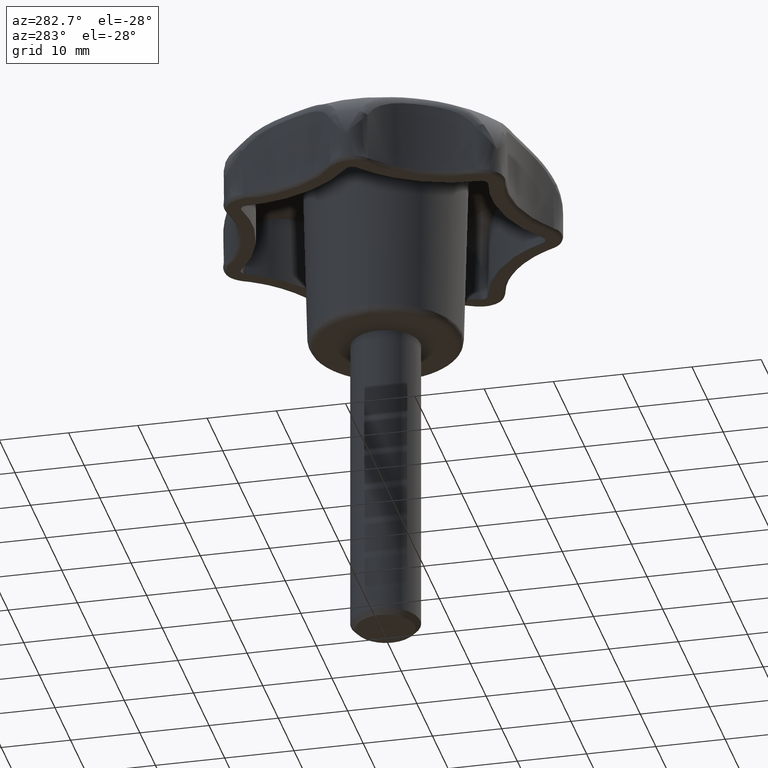
[diagram: clean part render]
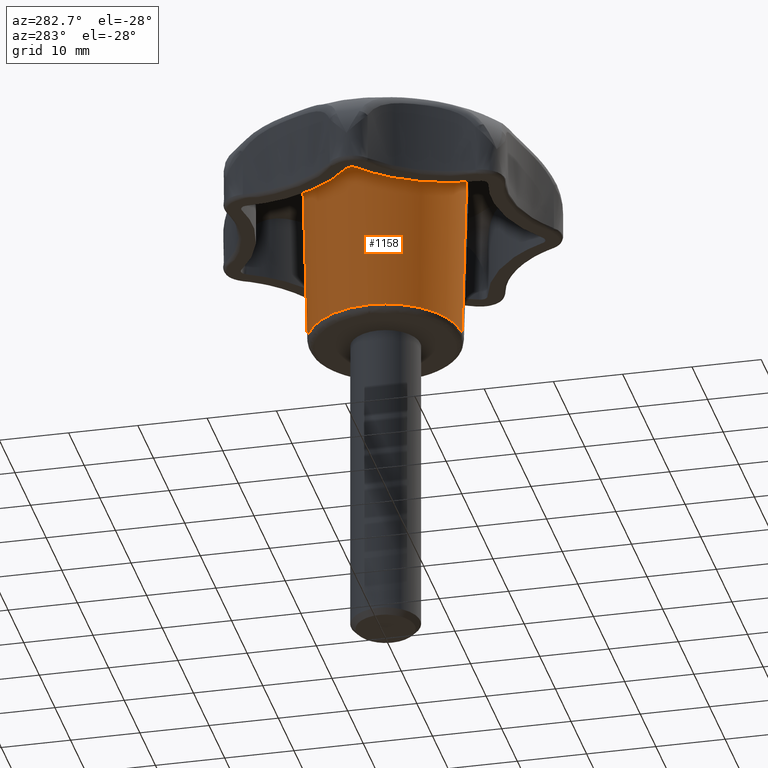
[diagram: same view with one face highlighted and labeled with its STEP entity id]
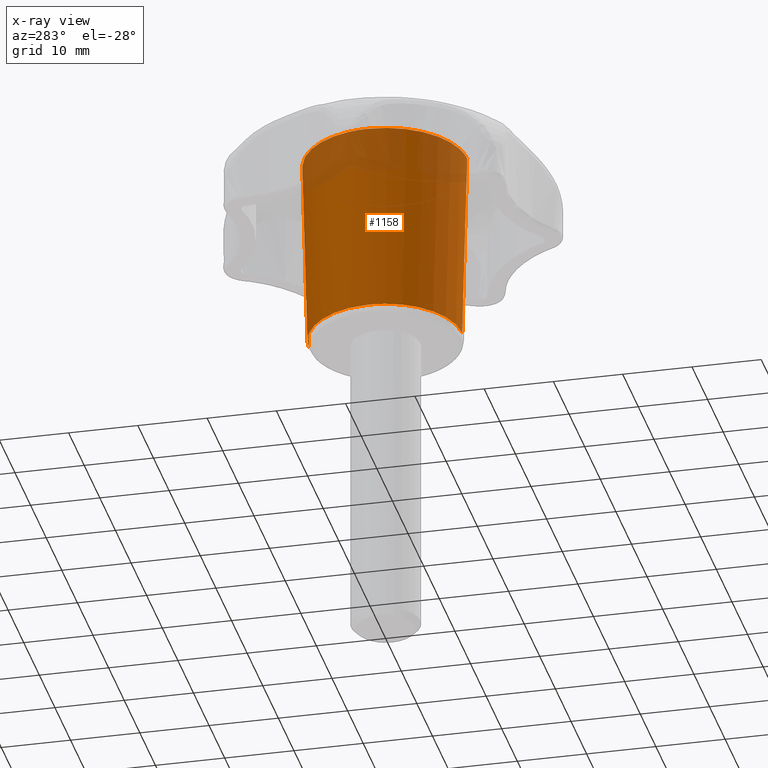
[diagram: x-ray of the same camera — body ghosted, the highlighted face saturated]
A machine part, auxiliary view. The second image highlights one B-rep face of the part: STEP entity #1158.
The next image is the same camera in x-ray: the body ghosted, the highlighted face saturated — about 21% of this face is hidden behind the body in this view.
In plain terms, the highlighted face is a freeform B-spline surface patch.
Its self-contained STEP definition (entity closure, byte-faithful):
#890=CARTESIAN_POINT('',(0.096209389753238,-11.025080218294979,0.973822682201087));
#891=VERTEX_POINT('',#890);
#905=CARTESIAN_POINT('',(-11.025499999999990,0.0,0.973822999999896));
#906=VERTEX_POINT('',#905);
#907=CARTESIAN_POINT('',(0.096209389753238,-11.025080218294979,0.973822682201087));
#908=CARTESIAN_POINT('',(0.048105610599758,-11.025499991697457,0.973822682888713));
#909=CARTESIAN_POINT('',(-7.655574E-011,-11.025499991715609,0.973822683582358));
#910=CARTESIAN_POINT('',(-11.025500000036002,-11.025499995875904,0.973822842561520));
#911=CARTESIAN_POINT('',(-11.025499999999990,0.0,0.973822999999896));
#919=(BOUNDED_CURVE()B_SPLINE_CURVE(2,(#907,#908,#909,#910,#911),.UNSPECIFIED.,.F.,.U.)B_SPLINE_CURVE_WITH_KNOTS((3,2,3),(0.748460185984060,0.750000000000000,1.0),.UNSPECIFIED.)CURVE()GEOMETRIC_REPRESENTATION_ITEM()RATIONAL_B_SPLINE_CURVE((0.996414213981245,0.998195995665989,1.0,0.707106781186548,1.0))REPRESENTATION_ITEM(''));
#920=EDGE_CURVE('',#891,#906,#919,.T.);
#922=CARTESIAN_POINT('',(-11.024629472860170,0.138546872775115,0.973822999676004));
#923=VERTEX_POINT('',#922);
#924=CARTESIAN_POINT('',(-11.025499999999990,0.0,0.973822999999896));
#925=CARTESIAN_POINT('',(-11.025499999995752,0.069276171265188,0.973822999837950));
#926=CARTESIAN_POINT('',(-11.024629472860171,0.138546872775115,0.973822999676004));
#934=(BOUNDED_CURVE()B_SPLINE_CURVE(2,(#924,#925,#926),.UNSPECIFIED.,.F.,.U.)B_SPLINE_CURVE_WITH_KNOTS((3,3),(0.0,0.002215704078931),.UNSPECIFIED.)CURVE()GEOMETRIC_REPRESENTATION_ITEM()RATIONAL_B_SPLINE_CURVE((1.0,0.997404141201535,0.994854295642495))REPRESENTATION_ITEM(''));
#935=EDGE_CURVE('',#906,#923,#934,.T.);
#986=CARTESIAN_POINT('',(-0.096209389753243,11.025080218294979,0.973822682201087));
#987=VERTEX_POINT('',#986);
#988=CARTESIAN_POINT('',(-11.024629472860171,0.138546872775115,0.973822999676004));
#989=CARTESIAN_POINT('',(-10.889001651023790,10.930897873059589,0.973822840859784));
#990=CARTESIAN_POINT('',(-0.096209389753243,11.025080218294976,0.973822682201087));
#998=(BOUNDED_CURVE()B_SPLINE_CURVE(2,(#988,#989,#990),.UNSPECIFIED.,.F.,.U.)B_SPLINE_CURVE_WITH_KNOTS((3,3),(0.002215704078931,0.248460185984060),.UNSPECIFIED.)CURVE()GEOMETRIC_REPRESENTATION_ITEM()RATIONAL_B_SPLINE_CURVE((0.994854295642495,0.711474667200933,0.996414213981245))REPRESENTATION_ITEM(''));
#999=EDGE_CURVE('',#923,#987,#998,.T.);
#1056=CARTESIAN_POINT('',(-0.102533979538385,11.749729297891481,28.648124191833819));
#1057=VERTEX_POINT('',#1056);
#1058=CARTESIAN_POINT('',(-0.096209389753243,11.025080218294979,0.973822682201087));
#1059=CARTESIAN_POINT('',(-0.102533979538385,11.749729297891481,28.648124191833819));
#1060=QUASI_UNIFORM_CURVE('',1,(#1058,#1059),.UNSPECIFIED.,.F.,.U.);
#1061=EDGE_CURVE('',#987,#1057,#1060,.T.);
#1080=CARTESIAN_POINT('',(0.102533979538241,-11.749729297892250,28.648124191833581));
#1081=VERTEX_POINT('',#1080);
#1095=CARTESIAN_POINT('',(0.096209389753238,-11.025080218294979,0.973822682201087));
#1096=CARTESIAN_POINT('',(0.102533979538241,-11.749729297892250,28.648124191833581));
#1097=QUASI_UNIFORM_CURVE('',1,(#1095,#1096),.UNSPECIFIED.,.F.,.U.);
#1098=EDGE_CURVE('',#891,#1081,#1097,.T.);
#1103=CARTESIAN_POINT('',(-0.096056319209568,11.006963954614470,0.281965462893923));
#1104=CARTESIAN_POINT('',(-11.103020273824034,10.910907635404898,0.281965462893923));
#1105=CARTESIAN_POINT('',(-11.006963954614470,-0.096056319209568,0.281965462893923));
#1106=CARTESIAN_POINT('',(-10.910907635404898,-11.103020273824034,0.281965462893923));
#1107=CARTESIAN_POINT('',(0.096056319209568,-11.006963954614470,0.281965462893923));
#1108=CARTESIAN_POINT('',(-0.102700384620309,11.768298441402189,29.357278446160858));
#1109=CARTESIAN_POINT('',(-11.870998826022495,11.665598056781876,29.357278446160851));
#1110=CARTESIAN_POINT('',(-11.768298441402189,-0.102700384620309,29.357278446160858));
#1111=CARTESIAN_POINT('',(-11.665598056781876,-11.870998826022495,29.357278446160851));
#1112=CARTESIAN_POINT('',(0.102700384620309,-11.768298441402189,29.357278446160858));
#1120=(BOUNDED_SURFACE()B_SPLINE_SURFACE(2,1,((#1103,#1108),(#1104,#1109),(#1105,#1110),(#1106,#1111),(#1107,#1112)),.UNSPECIFIED.,.F.,.F.,.U.)B_SPLINE_SURFACE_WITH_KNOTS((3,2,3),(2,2),(0.0,19.499097747825431,38.998195495650862),(0.0,29.085279772065260),.UNSPECIFIED.)GEOMETRIC_REPRESENTATION_ITEM()RATIONAL_B_SPLINE_SURFACE(((1.0,1.0),(0.707106781186548,0.707106781186548),(1.0,1.0),(0.707106781186548,0.707106781186548),(1.0,1.0)))REPRESENTATION_ITEM('')SURFACE());
#1121=ORIENTED_EDGE('',*,*,#920,.F.);
#1122=ORIENTED_EDGE('',*,*,#1098,.T.);
#1123=CARTESIAN_POINT('',(-11.750157794577399,0.0,28.648124470959232));
#1124=VERTEX_POINT('',#1123);
#1125=CARTESIAN_POINT('',(-11.750157794577399,0.0,28.648124470959232));
#1126=CARTESIAN_POINT('',(-11.750157794434376,-11.750176655373339,28.648124332615847));
#1127=CARTESIAN_POINT('',(3.756179E-010,-11.750176671906051,28.648124193046218));
#1128=CARTESIAN_POINT('',(0.051267965940681,-11.750176671978188,28.648124192437251));
#1129=CARTESIAN_POINT('',(0.102533979538241,-11.749729297892246,28.648124191833578));
#1137=(BOUNDED_CURVE()B_SPLINE_CURVE(2,(#1125,#1126,#1127,#1128,#1129),.UNSPECIFIED.,.F.,.U.)B_SPLINE_CURVE_WITH_KNOTS((3,2,3),(0.0,0.250000000000000,0.251539831522489),.UNSPECIFIED.)CURVE()GEOMETRIC_REPRESENTATION_ITEM()RATIONAL_B_SPLINE_CURVE((1.0,0.707106781186547,1.0,0.998195975155791,0.996414173466161))REPRESENTATION_ITEM(''));
#1138=EDGE_CURVE('',#1124,#1081,#1137,.T.);
#1139=ORIENTED_EDGE('',*,*,#1138,.F.);
#1140=CARTESIAN_POINT('',(-0.102533979538385,11.749729297891479,28.648124191833816));
#1141=CARTESIAN_POINT('',(-11.750157794721675,11.648085998917605,28.648124331403327));
#1142=CARTESIAN_POINT('',(-11.750157794577399,0.0,28.648124470959232));
#1150=(BOUNDED_CURVE()B_SPLINE_CURVE(2,(#1140,#1141,#1142),.UNSPECIFIED.,.F.,.U.)B_SPLINE_CURVE_WITH_KNOTS((3,3),(0.751539831525140,1.0),.UNSPECIFIED.)CURVE()GEOMETRIC_REPRESENTATION_ITEM()RATIONAL_B_SPLINE_CURVE((0.996414173460028,0.708910806033862,1.0))REPRESENTATION_ITEM(''));
#1151=EDGE_CURVE('',#1057,#1124,#1150,.T.);
#1152=ORIENTED_EDGE('',*,*,#1151,.F.);
#1153=ORIENTED_EDGE('',*,*,#1061,.F.);
#1154=ORIENTED_EDGE('',*,*,#999,.F.);
#1155=ORIENTED_EDGE('',*,*,#935,.F.);
#1156=EDGE_LOOP('',(#1121,#1122,#1139,#1152,#1153,#1154,#1155));
#1157=FACE_OUTER_BOUND('',#1156,.T.);
#1158=ADVANCED_FACE('',(#1157),#1120,.T.);